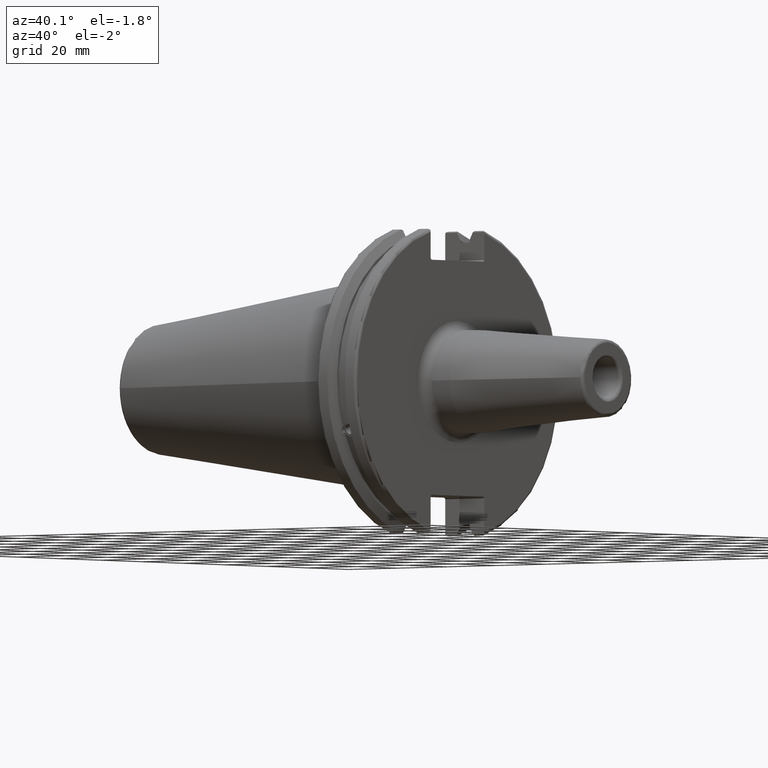
[diagram: clean part render]
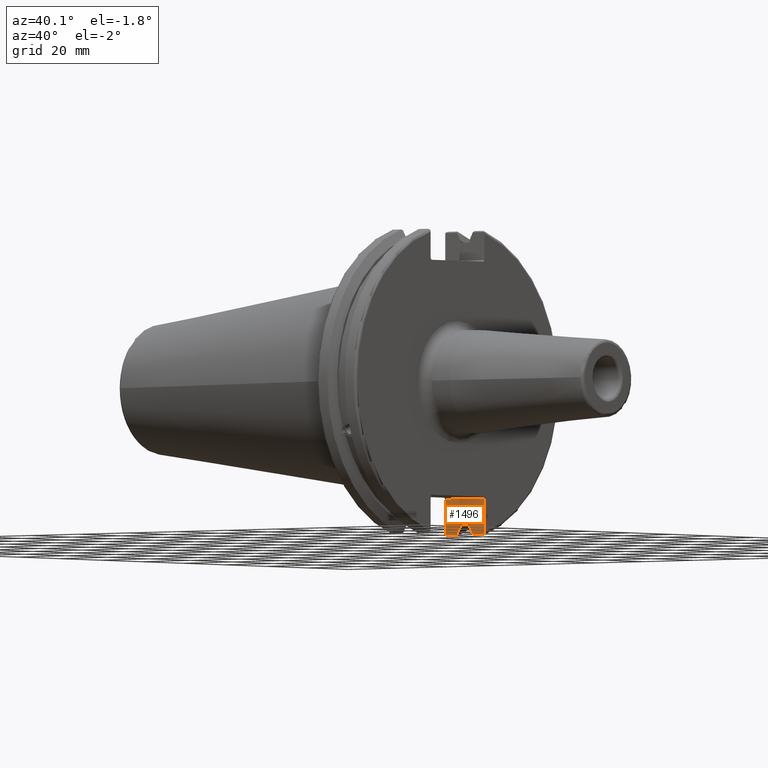
[diagram: same view with one face highlighted and labeled with its STEP entity id]
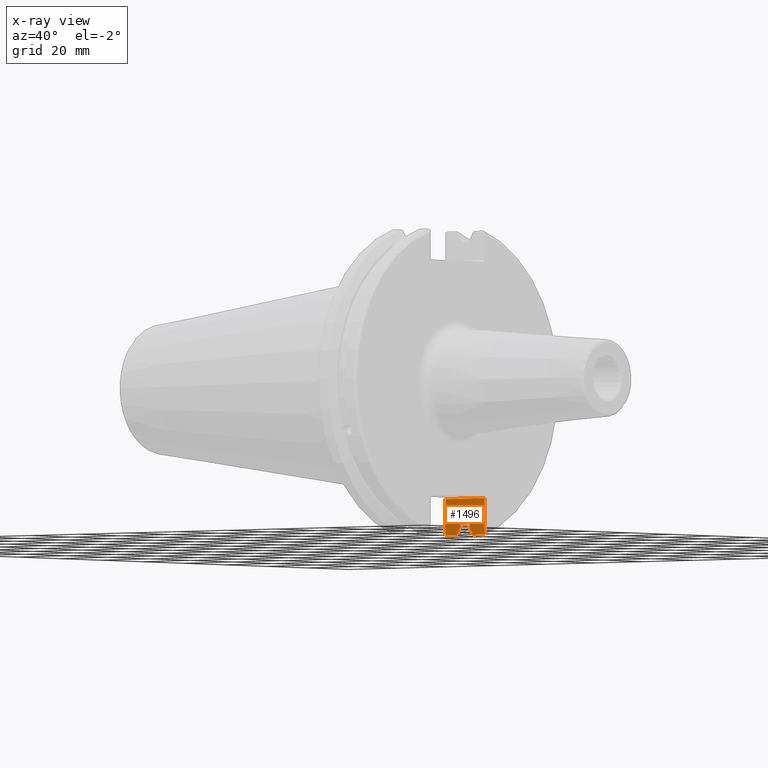
[diagram: x-ray of the same camera — body ghosted, the highlighted face saturated]
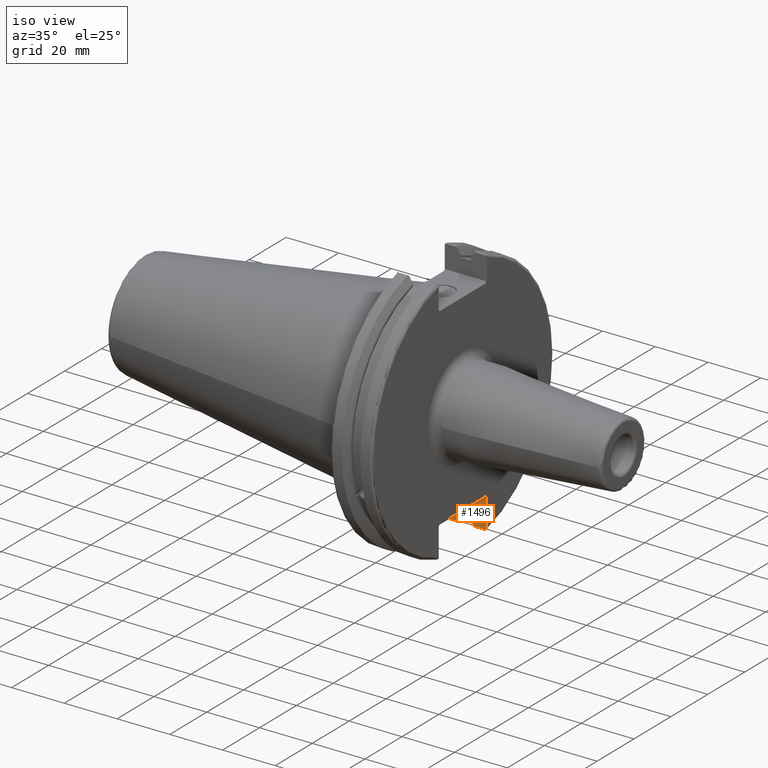
[diagram: same view with one face highlighted and labeled with its STEP entity id]
A machine part, auxiliary view. The second image highlights one B-rep face of the part: STEP entity #1496.
The next image is the same camera in x-ray: the body ghosted, the highlighted face saturated — about 0% of this face is hidden behind the body in this view.
A second angle (iso view) of the same face is appended — the face is thin or edge-on in the first view.
In plain terms, the highlighted planar face has unit normal (0, 1, 0).
Its self-contained STEP definition (entity closure, byte-faithful):
#19=(
BOUNDED_CURVE()
B_SPLINE_CURVE(2,(#2719,#2720,#2721),.UNSPECIFIED.,.F.,.F.)
B_SPLINE_CURVE_WITH_KNOTS((3,3),(0.,0.275823910674652),.UNSPECIFIED.)
CURVE()
GEOMETRIC_REPRESENTATION_ITEM()
RATIONAL_B_SPLINE_CURVE((1.,1.00038235573731,1.00012873636533))
REPRESENTATION_ITEM('')
);
#24=(
BOUNDED_CURVE()
B_SPLINE_CURVE(2,(#2854,#2855,#2856),.UNSPECIFIED.,.F.,.F.)
B_SPLINE_CURVE_WITH_KNOTS((3,3),(0.0558332664532001,0.331657177124504),
 .UNSPECIFIED.)
CURVE()
GEOMETRIC_REPRESENTATION_ITEM()
RATIONAL_B_SPLINE_CURVE((1.00012873636632,1.00038235574022,1.))
REPRESENTATION_ITEM('')
);
#56=B_SPLINE_CURVE_WITH_KNOTS('',3,(#2811,#2812,#2813,#2814,#2815,#2816),
 .UNSPECIFIED.,.F.,.F.,(4,2,4),(0.452859340315922,0.491741138916218,0.506051994111223),
 .UNSPECIFIED.);
#59=B_SPLINE_CURVE_WITH_KNOTS('',3,(#2847,#2848,#2849,#2850,#2851,#2852),
 .UNSPECIFIED.,.F.,.F.,(4,2,4),(0.0976892167532858,0.112000071948292,0.150881870548587),
 .UNSPECIFIED.);
#96=LINE('',#2206,#188);
#123=LINE('',#2740,#215);
#124=LINE('',#2744,#216);
#125=LINE('',#2748,#217);
#134=LINE('',#2790,#226);
#140=LINE('',#2838,#232);
#142=LINE('',#2845,#234);
#143=LINE('',#2853,#235);
#188=VECTOR('',#1786,10.);
#215=VECTOR('',#1919,10.);
#216=VECTOR('',#1924,10.);
#217=VECTOR('',#1929,10.);
#226=VECTOR('',#1970,10.);
#232=VECTOR('',#1986,10.);
#234=VECTOR('',#1990,10.);
#235=VECTOR('',#1991,10.);
#329=PLANE('',#1662);
#397=FACE_OUTER_BOUND('',#500,.T.);
#500=EDGE_LOOP('',(#1233,#1234,#1235,#1236,#1237,#1238,#1239,#1240,#1241,
#1242,#1243,#1244));
#632=VERTEX_POINT('',#2184);
#642=VERTEX_POINT('',#2204);
#700=VERTEX_POINT('',#2716);
#701=VERTEX_POINT('',#2718);
#706=VERTEX_POINT('',#2738);
#707=VERTEX_POINT('',#2742);
#708=VERTEX_POINT('',#2746);
#724=VERTEX_POINT('',#2787);
#725=VERTEX_POINT('',#2789);
#731=VERTEX_POINT('',#2810);
#734=VERTEX_POINT('',#2837);
#736=VERTEX_POINT('',#2846);
#798=EDGE_CURVE('',#642,#632,#96,.T.);
#875=EDGE_CURVE('',#700,#701,#19,.T.);
#882=EDGE_CURVE('',#706,#700,#123,.T.);
#884=EDGE_CURVE('',#707,#706,#124,.T.);
#886=EDGE_CURVE('',#708,#707,#125,.T.);
#905=EDGE_CURVE('',#724,#725,#134,.T.);
#913=EDGE_CURVE('',#632,#731,#56,.T.);
#917=EDGE_CURVE('',#731,#734,#140,.T.);
#920=EDGE_CURVE('',#725,#642,#142,.T.);
#921=EDGE_CURVE('',#736,#724,#59,.T.);
#922=EDGE_CURVE('',#701,#736,#143,.T.);
#923=EDGE_CURVE('',#734,#708,#24,.T.);
#1233=ORIENTED_EDGE('',*,*,#913,.F.);
#1234=ORIENTED_EDGE('',*,*,#798,.F.);
#1235=ORIENTED_EDGE('',*,*,#920,.F.);
#1236=ORIENTED_EDGE('',*,*,#905,.F.);
#1237=ORIENTED_EDGE('',*,*,#921,.F.);
#1238=ORIENTED_EDGE('',*,*,#922,.F.);
#1239=ORIENTED_EDGE('',*,*,#875,.F.);
#1240=ORIENTED_EDGE('',*,*,#882,.F.);
#1241=ORIENTED_EDGE('',*,*,#884,.F.);
#1242=ORIENTED_EDGE('',*,*,#886,.F.);
#1243=ORIENTED_EDGE('',*,*,#923,.F.);
#1244=ORIENTED_EDGE('',*,*,#917,.F.);
#1496=ADVANCED_FACE('',(#397),#329,.F.);
#1662=AXIS2_PLACEMENT_3D('',#2844,#1988,#1989);
#1786=DIRECTION('',(0.,0.,-1.));
#1919=DIRECTION('',(0.,0.,-1.));
#1924=DIRECTION('',(-1.,0.,0.));
#1929=DIRECTION('',(0.,0.,1.));
#1970=DIRECTION('',(0.,0.,1.));
#1986=DIRECTION('',(-1.,2.63163976207444E-16,0.));
#1988=DIRECTION('center_axis',(2.63163976207444E-16,1.,0.));
#1989=DIRECTION('ref_axis',(1.,-2.63163976207444E-16,0.));
#1990=DIRECTION('',(1.,-2.63163976207444E-16,0.));
#1991=DIRECTION('',(-1.,2.63163976207444E-16,0.));
#2184=CARTESIAN_POINT('',(19.05,12.95,-46.4407434937254));
#2204=CARTESIAN_POINT('',(19.05,12.95,-35.806));
#2206=CARTESIAN_POINT('',(19.05,12.95,-17.653));
#2716=CARTESIAN_POINT('',(9.2191,12.95,-44.5791147973604));
#2718=CARTESIAN_POINT('',(7.88638960562424,12.95,-46.9780755322918));
#2719=CARTESIAN_POINT('Ctrl Pts',(9.2191,12.95,-44.5791147973604));
#2720=CARTESIAN_POINT('Ctrl Pts',(8.57020449055827,12.95,-45.7494966802153));
#2721=CARTESIAN_POINT('Ctrl Pts',(7.88638960562424,12.95,-46.9780755322918));
#2738=CARTESIAN_POINT('',(9.2191,12.95,-43.7678716897452));
#2740=CARTESIAN_POINT('',(9.2191,12.95,-17.653));
#2742=CARTESIAN_POINT('',(13.0491,12.95,-43.7678716897452));
#2744=CARTESIAN_POINT('',(11.1341,12.95,-43.7678716897452));
#2746=CARTESIAN_POINT('',(13.0491,12.95,-44.5791147973605));
#2748=CARTESIAN_POINT('',(13.0491,12.95,-17.653));
#2787=CARTESIAN_POINT('',(3.175,12.95,-46.4407434937254));
#2789=CARTESIAN_POINT('',(3.175,12.95,-35.806));
#2790=CARTESIAN_POINT('',(3.175,12.95,-17.653));
#2810=CARTESIAN_POINT('',(18.9055020570566,12.95,-46.9780755322918));
#2811=CARTESIAN_POINT('Ctrl Pts',(19.05,12.95,-46.4407434937254));
#2812=CARTESIAN_POINT('Ctrl Pts',(19.05,12.95,-46.5703494890597));
#2813=CARTESIAN_POINT('Ctrl Pts',(19.0204646992875,12.95,-46.7230464903732));
#2814=CARTESIAN_POINT('Ctrl Pts',(18.9538432708766,12.95,-46.887363294568));
#2815=CARTESIAN_POINT('Ctrl Pts',(18.9315844351616,12.95,-46.9333752207329));
#2816=CARTESIAN_POINT('Ctrl Pts',(18.9055020570566,12.95,-46.9780755322918));
#2837=CARTESIAN_POINT('',(14.3818103943757,12.95,-46.9780755322918));
#2838=CARTESIAN_POINT('',(16.8551045170244,12.95,-46.9780755322918));
#2844=CARTESIAN_POINT('Origin',(3.17499999999999,12.95,-35.306));
#2845=CARTESIAN_POINT('',(10.63125,12.95,-35.806));
#2846=CARTESIAN_POINT('',(3.31949794294344,12.95,-46.9780755322918));
#2847=CARTESIAN_POINT('Ctrl Pts',(3.31949794294344,12.95,-46.9780755322918));
#2848=CARTESIAN_POINT('Ctrl Pts',(3.29341556483839,12.95,-46.9333752207329));
#2849=CARTESIAN_POINT('Ctrl Pts',(3.27115672912336,12.95,-46.887363294568));
#2850=CARTESIAN_POINT('Ctrl Pts',(3.20453530071253,12.95,-46.7230464903732));
#2851=CARTESIAN_POINT('Ctrl Pts',(3.175,12.95,-46.5703494890597));
#2852=CARTESIAN_POINT('Ctrl Pts',(3.175,12.95,-46.4407434937254));
#2853=CARTESIAN_POINT('',(5.39149548297563,12.95,-46.9780755322918));
#2854=CARTESIAN_POINT('Ctrl Pts',(14.3818103943757,12.95,-46.9780755322918));
#2855=CARTESIAN_POINT('Ctrl Pts',(13.6979955094851,12.95,-45.7494966802933));
#2856=CARTESIAN_POINT('Ctrl Pts',(13.0491,12.95,-44.5791147973604));